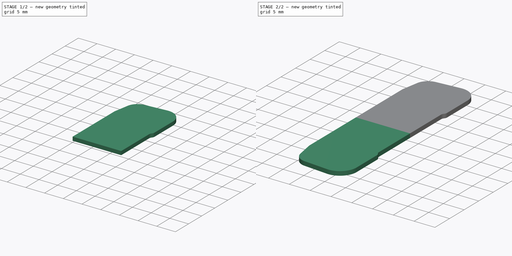
[diagram: build sequence overview — one tinted view per stage of 2, left to right]
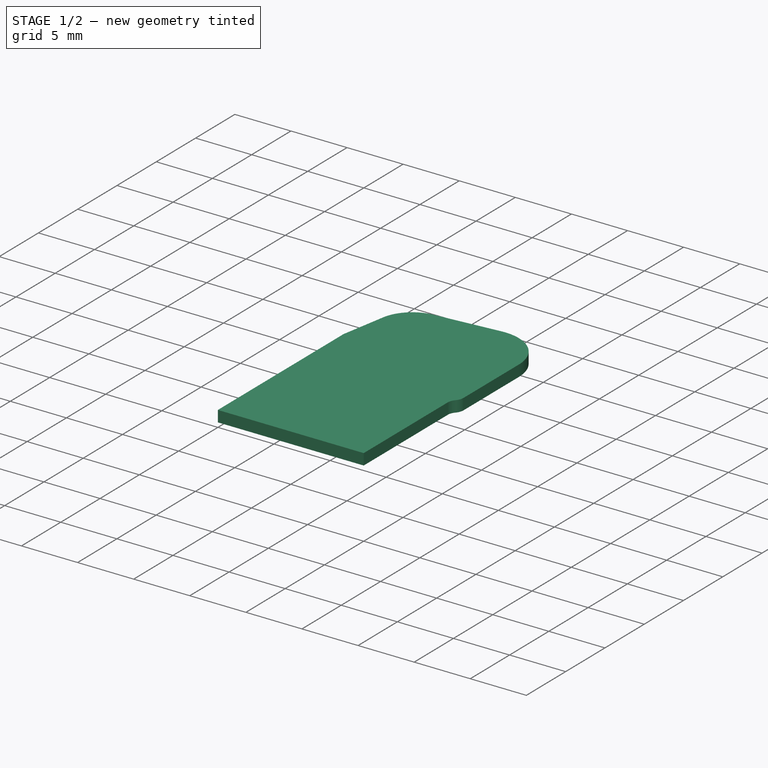
[diagram: stage 1 of 2 — iso view after this stage's code; geometry added in this stage tinted green]
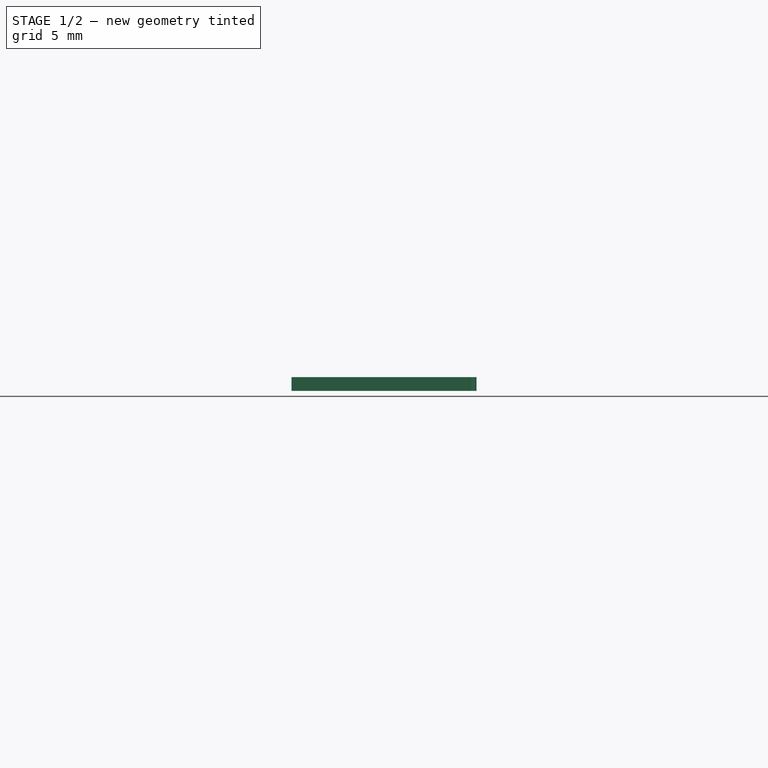
[diagram: stage 1 of 2 — front view after this stage's code; geometry added in this stage tinted green]
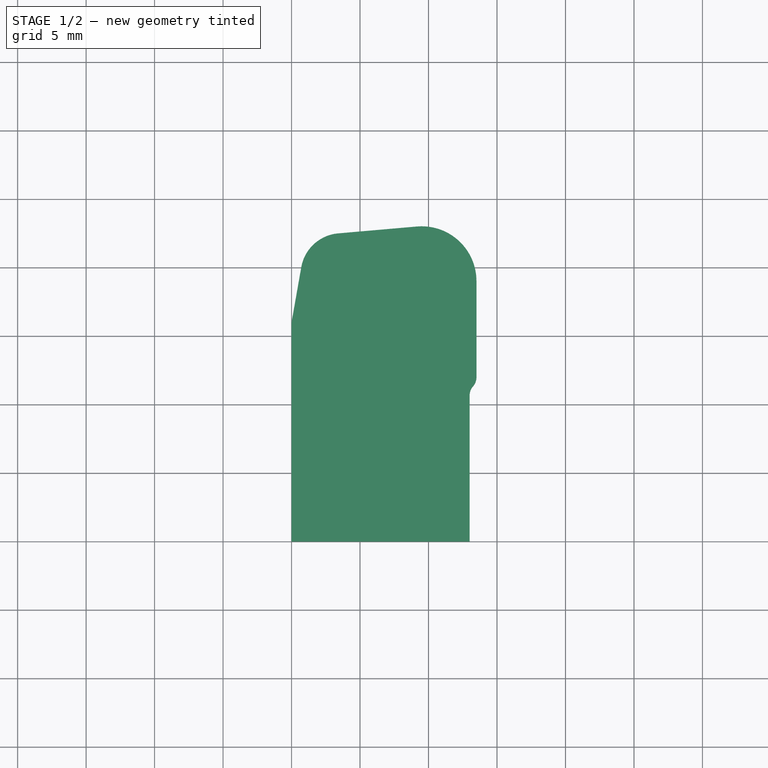
[diagram: stage 1 of 2 — top view after this stage's code; geometry added in this stage tinted green]
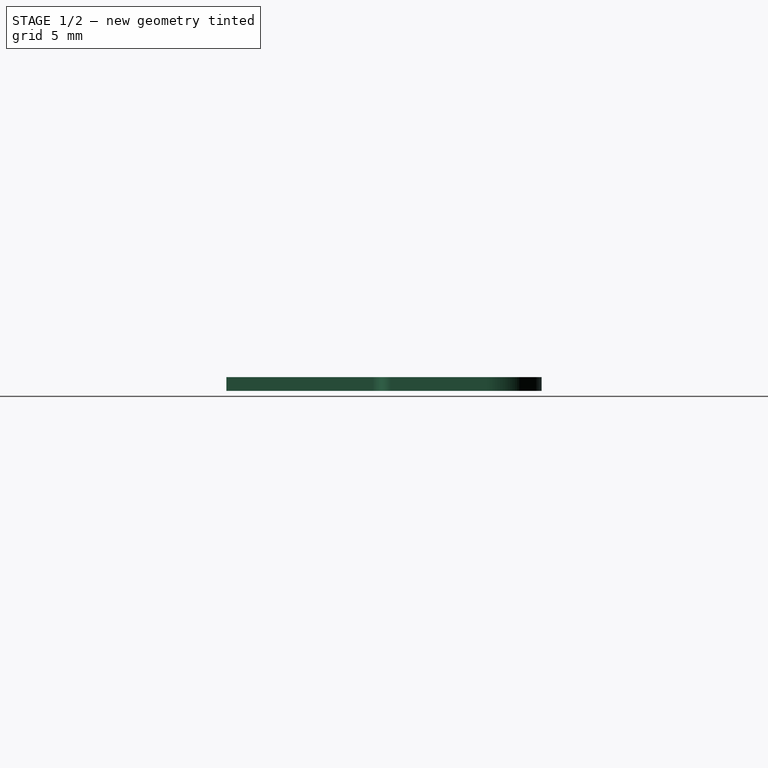
[diagram: stage 1 of 2 — right view after this stage's code; geometry added in this stage tinted green]
FCSTD DOCUMENT  (FreeCAD 0.18.1R)
Label: PCB_Ecran
License: All rights reserved
LicenseURL: http://en.wikipedia.org/wiki/All_rights_reserved
objects: Sketcher::SketchObject×1, PartDesign::Pad×1, PartDesign::Mirrored×1, PartDesign::Body×1
note: 5 computed .brp shape members not serialized (recipe doc carries the construction recipe); baked Part::Feature solids carry a one-line shape summary decoded from their .brp

FEATURE [Sketcher::SketchObject] Sketch007
  MapMode = 5
  Support = -> [XY_Plane]
  sketch-geometry (10):
    g0: ArcOfCircle CenterX=24.5 CenterY=19.0152 CenterZ=0 NormalX=0 NormalY=0 NormalZ=1 AngleXU=0 Radius=4 StartAngle=0 EndAngle=1.65806
    g1: LineSegment StartX=18.4035 StartY=22.4971 StartZ=0 EndX=24.1514 EndY=23 EndZ=0
    g2: ArcOfCircle CenterX=18.6649 CenterY=19.5085 CenterZ=0 NormalX=0 NormalY=0 NormalZ=1 AngleXU=0 Radius=3 StartAngle=1.65806 EndAngle=2.96706
    g3: LineSegment StartX=15.7105 StartY=20.0295 StartZ=0 EndX=15 EndY=16 EndZ=0
    g4: LineSegment StartX=28 StartY=0 StartZ=0 EndX=28 EndY=10.6771 EndZ=0
    g5: ArcOfCircle CenterX=29 CenterY=10.6771 CenterZ=0 NormalX=0 NormalY=0 NormalZ=1 AngleXU=0 Radius=1 StartAngle=2.41886 EndAngle=3.14159
    g6: ArcOfCircle CenterX=27.5 CenterY=12 CenterZ=0 NormalX=0 NormalY=0 NormalZ=1 AngleXU=0 Radius=1 StartAngle=5.56045 EndAngle=6.28319
    g7: LineSegment StartX=28.5 StartY=19.0152 StartZ=0 EndX=28.5 EndY=12 EndZ=0
    g8: LineSegment StartX=15 StartY=0 StartZ=0 EndX=28 EndY=0 EndZ=0
    g9: LineSegment StartX=15 StartY=16 StartZ=0 EndX=15 EndY=0 EndZ=0
  constraints (27):
    c: Tangent(g1,g0) = 1.5708
    c: Tangent(g2,g3) = -1.5708
    c: Tangent(g2,g1) = 1.5708
    c: PointOnObject(g4,g-1)
    c: Vertical(g4)
    c: Tangent(g5,g4) = 1.5708
    c: Vertical(g7)
    c: Tangent(g6,g5) = 1.5708
    c: Tangent(g6,g7) = 1.5708
    c: Radius(g5) = 1
    c: Equal(g5,g6)
    c: Tangent(g7,g0) = 1.5708
    c: DistanceX(g4,g6) = 0.5
    c: DistanceY(g4,g0) = 23
    c: DistanceY(g-1,g6) = 12
    c: Radius(g2) = 3
    c: Radius(g0) = 4
    c: Angle(g1,g4) = 1.48353
    c: Coincident(g8,g4)
    c: Horizontal(g8)
    c: DistanceX(g-1,g4) = 28
    c: Coincident(g9,g3)
    c: Vertical(g9)
    c: Coincident(g8,g9)
    c: DistanceX(g8,g8) = 13
    c: Angle(g3,g-1) = 1.74533
    c: DistanceY(g9,g9) = 16
FEATURE [PartDesign::Pad] Pad
  Length = 1
  Length2 = 100
  Profile = -> Sketch007
  Type = 0
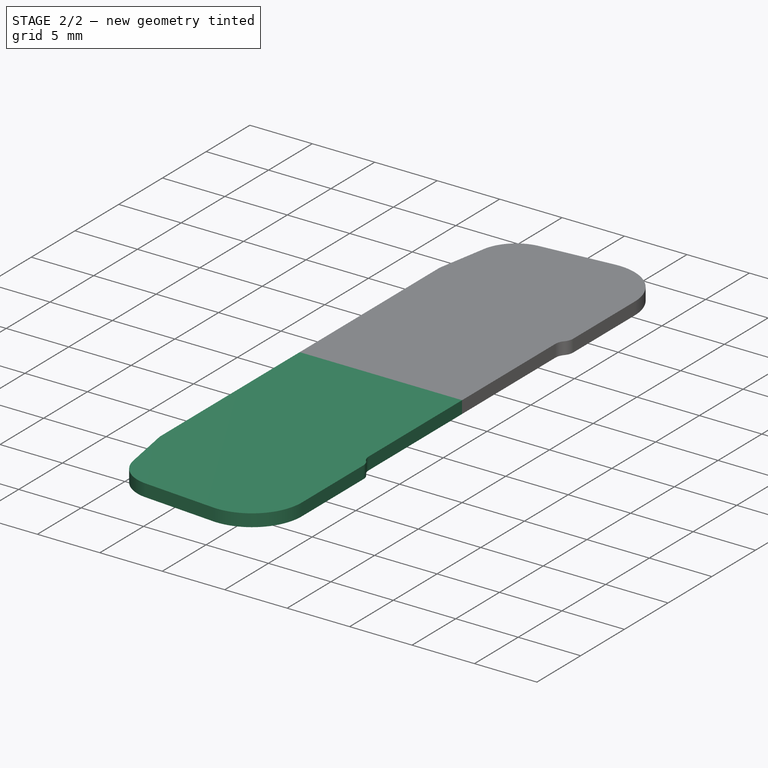
[diagram: stage 2 of 2 — iso view after this stage's code; geometry added in this stage tinted green]
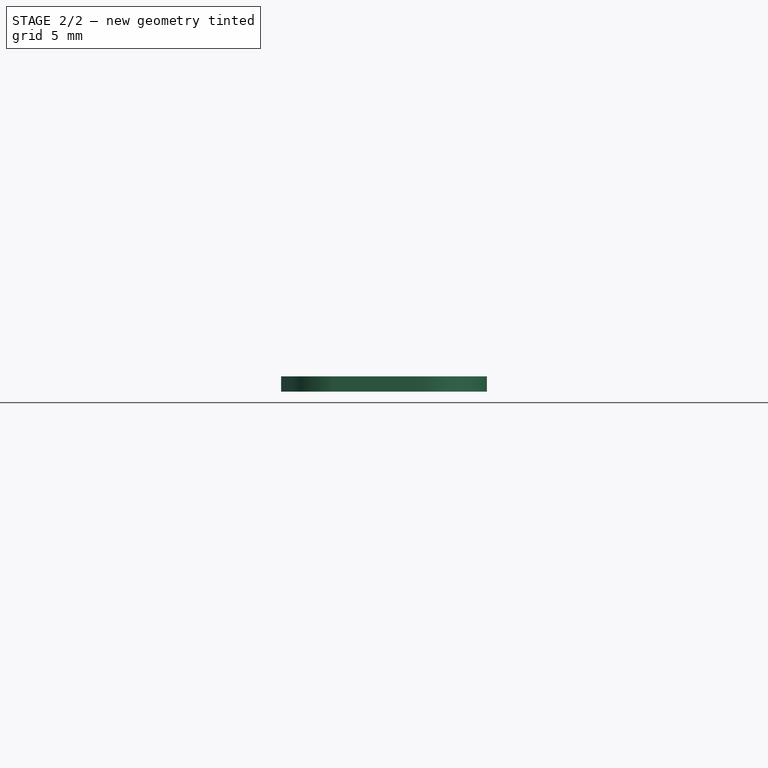
[diagram: stage 2 of 2 — front view after this stage's code; geometry added in this stage tinted green]
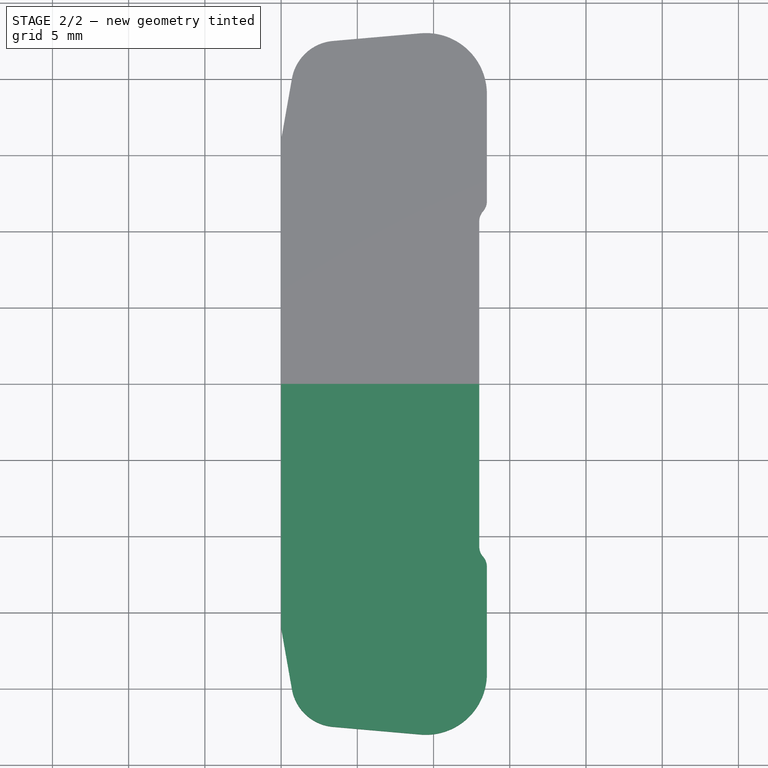
[diagram: stage 2 of 2 — top view after this stage's code; geometry added in this stage tinted green]
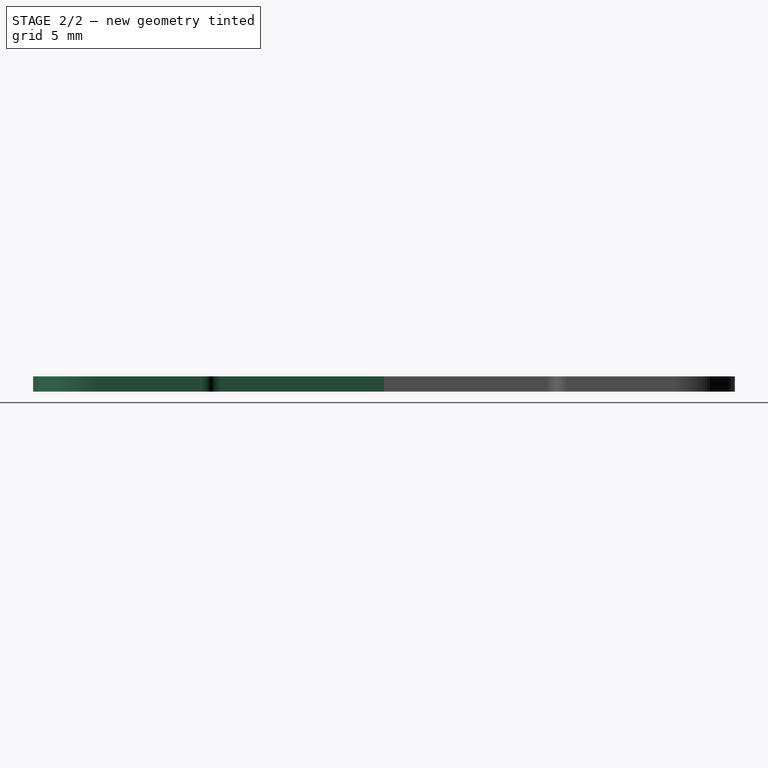
[diagram: stage 2 of 2 — right view after this stage's code; geometry added in this stage tinted green]
FEATURE [PartDesign::Mirrored] Mirrored
  BaseFeature = -> Pad
  MirrorPlane = -> Sketch007 [H_Axis]
  Originals = -> [Pad]
FEATURE [PartDesign::Body] Body
  Group = -> [Sketch007,Pad,Mirrored]
  Origin = -> Origin
  Tip = -> Mirrored
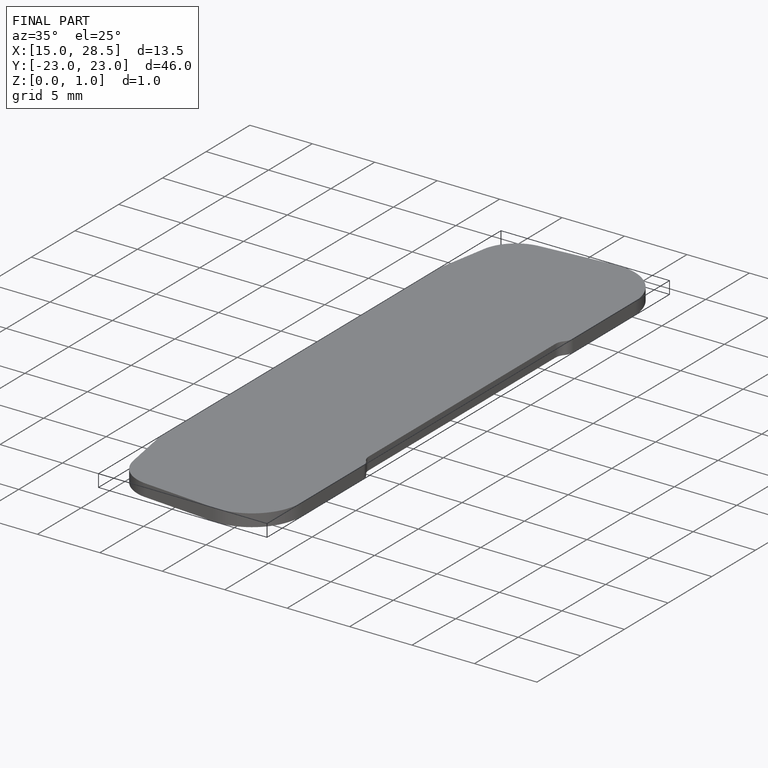
[diagram: finished part — iso view with bounding-box wireframe]
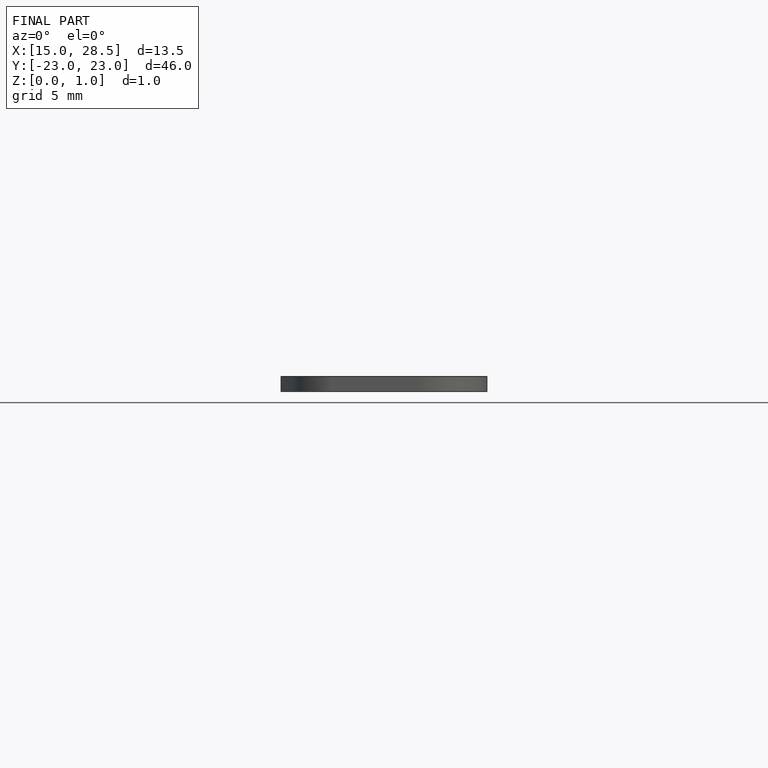
[diagram: finished part — front view with bounding-box wireframe]
